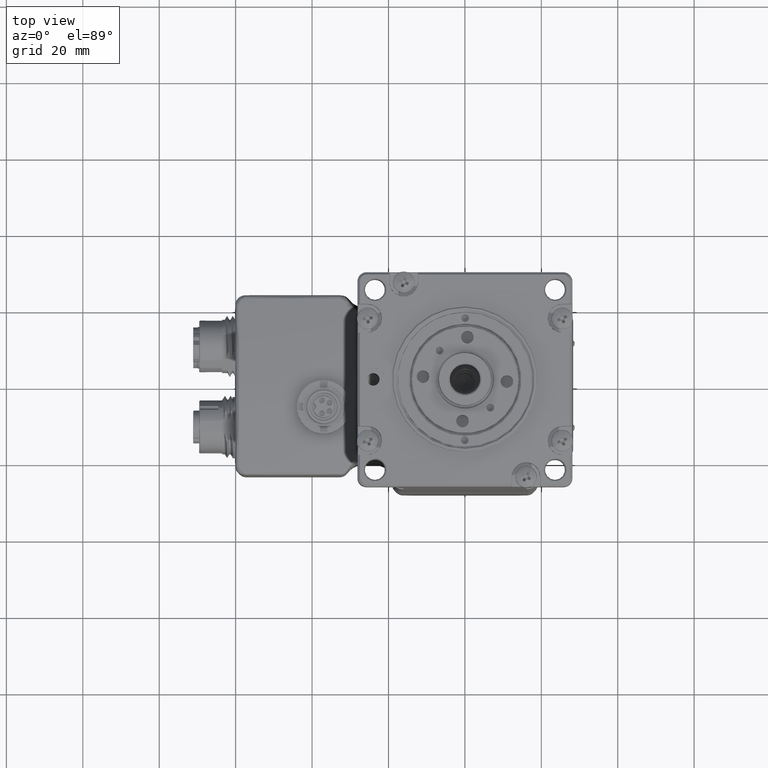
[diagram: clean part render]
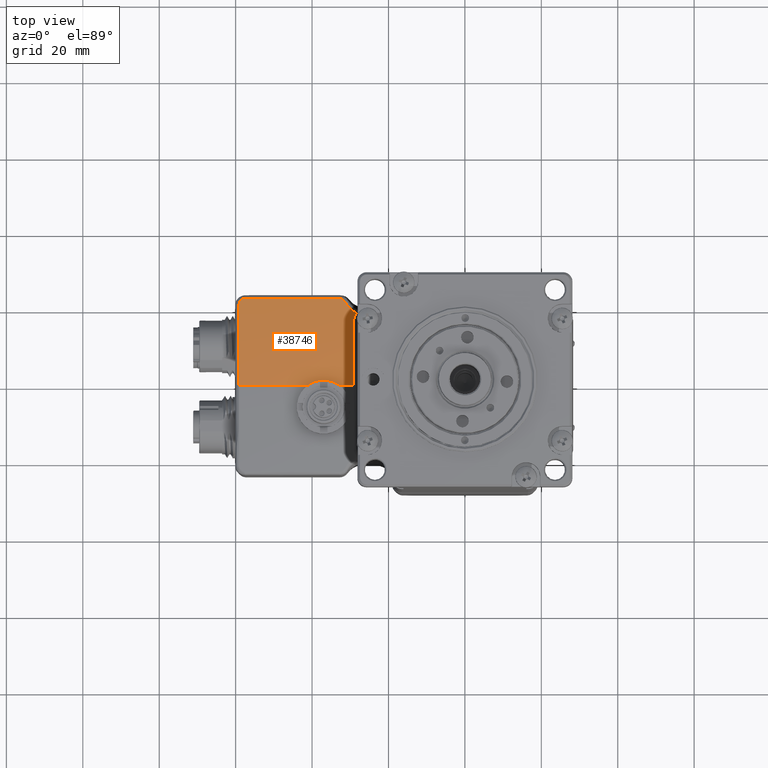
[diagram: same view with one face highlighted and labeled with its STEP entity id]
A machine part, top view. The second image highlights one B-rep face of the part: STEP entity #38746.
In plain terms, the highlighted toroidal blend (fillet) surface has major radius 200.5 mm and minor (blend) radius 400 mm.
Its self-contained STEP definition (entity closure, byte-faithful):
#1144 = CARTESIAN_POINT ( 'NONE',  ( -57.60731005357913403, 22.64756672928892556, -45.87919672931335668 ) ) ;
#1817 = CARTESIAN_POINT ( 'NONE',  ( -58.80549918260448550, 22.05673220114423216, -45.90289053374101513 ) ) ;
#2599 = CARTESIAN_POINT ( 'NONE',  ( -31.41709389123850826, 21.80595179642983794, -44.70832432824604297 ) ) ;
#2675 = CARTESIAN_POINT ( 'NONE',  ( -58.74214155870905785, 22.13454689370081141, -45.90672916452935226 ) ) ;
#3295 = AXIS2_PLACEMENT_3D ( 'NONE', #99742, #22039, #4146 ) ;
#3944 = FACE_OUTER_BOUND ( 'NONE', #35533, .T. ) ;
#4146 = DIRECTION ( 'NONE',  ( 0.0000000000000000000, 0.0000000000000000000, -1.000000000000000000 ) ) ;
#4257 = CARTESIAN_POINT ( 'NONE',  ( -32.08516530334657801, 22.48583658932004425, -44.79020920905148984 ) ) ;
#4526 = CIRCLE ( 'NONE', #3295, 199.4987562247066535 ) ;
#7296 = VERTEX_POINT ( 'NONE', #114656 ) ;
#10343 = ORIENTED_EDGE ( 'NONE', *, *, #43898, .T. ) ;
#11119 = CIRCLE ( 'NONE', #97843, 400.0000000000000568 ) ;
#11168 = CARTESIAN_POINT ( 'NONE',  ( -59.03487147467225071, 21.62365206410903795, -45.87267897063035349 ) ) ;
#13641 = CARTESIAN_POINT ( 'NONE',  ( -32.48019785733185216, 22.61870332223945113, -44.80939040744205215 ) ) ;
#13667 = CARTESIAN_POINT ( 'NONE',  ( -29.19750623441397153, 14.06280358876563064, -43.99750933611730375 ) ) ;
#14059 = CARTESIAN_POINT ( 'NONE',  ( -32.21335295235293472, 22.54268488755889521, -44.79794514531896255 ) ) ;
#17478 = TOROIDAL_SURFACE ( 'NONE', #31294, -200.5000000000000000, 400.0000000000000000 ) ;
#19479 = CARTESIAN_POINT ( 'NONE',  ( -29.09628976042439064, 17.29761763409294062, -44.25219476726910983 ) ) ;
#19764 = EDGE_CURVE ( 'NONE', #30929, #37276, #122812, .T. ) ;
#21799 = CARTESIAN_POINT ( 'NONE',  ( -58.36631100947248996, 22.45673341319814398, -45.91435395942802700 ) ) ;
#22039 = DIRECTION ( 'NONE',  ( -1.000000000000000000, -0.0000000000000000000, -0.0000000000000000000 ) ) ;
#23152 = EDGE_CURVE ( 'NONE', #33723, #118564, #83473, .T. ) ;
#23863 = CARTESIAN_POINT ( 'NONE',  ( -32.61686941492307312, 22.63793472174118548, -44.81308316740118869 ) ) ;
#27120 = ORIENTED_EDGE ( 'NONE', *, *, #19764, .T. ) ;
#27765 = CARTESIAN_POINT ( 'NONE',  ( -29.19750623441397153, 14.06280358876563064, -43.99750933611730375 ) ) ;
#28490 = CARTESIAN_POINT ( 'NONE',  ( -28.54456909735304393, 18.50372330885969063, -44.36001045726592196 ) ) ;
#28613 = CARTESIAN_POINT ( 'NONE',  ( -29.19750623441396087, 11.72173503361106306, -43.83207428468072209 ) ) ;
#29122 = B_SPLINE_CURVE_WITH_KNOTS ( 'NONE', 3,
 ( #57091, #47678, #126582, #1144 ),
 .UNSPECIFIED., .F., .F.,
 ( 4, 4 ),
 ( 0.0000000000000000000, 0.02487924307717509151 ),
 .UNSPECIFIED. ) ;
#29736 = CARTESIAN_POINT ( 'NONE',  ( -28.40897915177196609, 18.68372758310926329, -44.37677621970488673 ) ) ;
#30929 = VERTEX_POINT ( 'NONE', #70613 ) ;
#31294 = AXIS2_PLACEMENT_3D ( 'NONE', #53033, #121318, #63292 ) ;
#31840 = VERTEX_POINT ( 'NONE', #86096 ) ;
#31999 = CARTESIAN_POINT ( 'NONE',  ( -32.75686630307614422, 22.63794923789689406, -44.81469016835023922 ) ) ;
#32070 = CARTESIAN_POINT ( 'NONE',  ( -57.60731005357913403, 22.64756672928892556, -45.87919672931335668 ) ) ;
#32866 = CARTESIAN_POINT ( 'NONE',  ( -31.41709389123850826, 21.80595179642983794, -44.70832432824604297 ) ) ;
#33285 = CARTESIAN_POINT ( 'NONE',  ( -30.37977520381132379, 20.29238770428408856, -44.54043084167929578 ) ) ;
#33559 = CARTESIAN_POINT ( 'NONE',  ( -31.41709389123850826, 21.80595179642983794, -44.70832432824604297 ) ) ;
#33713 = CARTESIAN_POINT ( 'NONE',  ( -31.05906811581978388, 21.15670490720646058, -44.63498635152226512 ) ) ;
#33723 = VERTEX_POINT ( 'NONE', #121225 ) ;
#33755 = VERTEX_POINT ( 'NONE', #13667 ) ;
#34142 = CARTESIAN_POINT ( 'NONE',  ( -29.84041694188121951, 19.78505233754739834, -44.48662278827443117 ) ) ;
#34187 = B_SPLINE_CURVE_WITH_KNOTS ( 'NONE', 3,
 ( #67325, #58744, #106962, #19479, #88131, #87719, #77083, #28490, #29736, #97997 ),
 .UNSPECIFIED., .F., .F.,
 ( 4, 2, 2, 2, 4 ),
 ( 0.0000000000000000000, 0.0006649466539031178777, 0.001329893307806235755, 0.001994839961709353633, 0.002659786615612471511 ),
 .UNSPECIFIED. ) ;
#35533 = EDGE_LOOP ( 'NONE', ( #88307, #96113, #112755, #104405, #27120, #61691, #10343, #40862, #89176 ) ) ;
#37276 = VERTEX_POINT ( 'NONE', #33559 ) ;
#38746 = ADVANCED_FACE ( 'NONE', ( #3944 ), #17478, .T. ) ;
#40003 = VERTEX_POINT ( 'NONE', #68225 ) ;
#40862 = ORIENTED_EDGE ( 'NONE', *, *, #41293, .T. ) ;
#41293 = EDGE_CURVE ( 'NONE', #7296, #33723, #103458, .T. ) ;
#43566 = CARTESIAN_POINT ( 'NONE',  ( -28.60403302873692510, 18.98853523618372563, -44.40573151277627773 ) ) ;
#43898 = EDGE_CURVE ( 'NONE', #96427, #7296, #29122, .T. ) ;
#47678 = CARTESIAN_POINT ( 'NONE',  ( -41.04942728413903552, 22.63880908634466493, -44.90987909392853084 ) ) ;
#50032 = CARTESIAN_POINT ( 'NONE',  ( -58.00380793920061251, 22.60775537954132375, -45.90419105690111934 ) ) ;
#51659 = CARTESIAN_POINT ( 'NONE',  ( -31.85092269915443808, 22.34033268990963705, -44.77153600352097129 ) ) ;
#53033 = CARTESIAN_POINT ( 'NONE',  ( -28.19999999999999929, 0.0000000000000000000, -243.0000000000000568 ) ) ;
#54833 = CARTESIAN_POINT ( 'NONE',  ( -59.11055249441288595, 21.13961658818478995, -45.82609973451712193 ) ) ;
#57091 = CARTESIAN_POINT ( 'NONE',  ( -32.75686630307614422, 22.63794923789689406, -44.81469016835023922 ) ) ;
#57349 = CARTESIAN_POINT ( 'NONE',  ( -59.10070960922558214, 3.522832663657032626, -44.69535340514646293 ) ) ;
#58744 = CARTESIAN_POINT ( 'NONE',  ( -29.19750623441397863, 16.64269888938452624, -44.19651698381605343 ) ) ;
#59837 = CARTESIAN_POINT ( 'NONE',  ( -58.53426302560738748, 22.34386352492217398, -45.91432759591945967 ) ) ;
#60295 = DIRECTION ( 'NONE',  ( 0.0000000000000000000, 0.0000000000000000000, -1.000000000000000000 ) ) ;
#61691 = ORIENTED_EDGE ( 'NONE', *, *, #119626, .T. ) ;
#61969 = B_SPLINE_CURVE_WITH_KNOTS ( 'NONE', 3,
 ( #66601, #126298, #125889, #96443, #28613, #27765 ),
 .UNSPECIFIED., .F., .F.,
 ( 4, 2, 4 ),
 ( 0.01407636730809768907, 0.02111697363792940790, 0.02815757996776112326 ),
 .UNSPECIFIED. ) ;
#62635 = EDGE_CURVE ( 'NONE', #33755, #40003, #4526, .T. ) ;
#63292 = DIRECTION ( 'NONE',  ( 0.0000000000000000000, 0.0000000000000000000, 1.000000000000000000 ) ) ;
#64232 = CARTESIAN_POINT ( 'NONE',  ( -59.10152671618043030, 7.048034914923397842, -44.78922229230166607 ) ) ;
#66311 = CARTESIAN_POINT ( 'NONE',  ( -32.75686630307614422, 22.63794923789689406, -44.81469016835023922 ) ) ;
#66601 = CARTESIAN_POINT ( 'NONE',  ( -29.06440430867916547, -1.166693263862555104E-14, -43.50093399460154586 ) ) ;
#67325 = CARTESIAN_POINT ( 'NONE',  ( -29.19750623441397508, 16.41862725826358371, -44.17801325266079715 ) ) ;
#68225 = CARTESIAN_POINT ( 'NONE',  ( -29.19750623441397508, 16.41862725826358371, -44.17801325266079715 ) ) ;
#69670 = CARTESIAN_POINT ( 'NONE',  ( -59.11055249441288595, 21.13961658818478995, -45.82609973451712193 ) ) ;
#70093 = CARTESIAN_POINT ( 'NONE',  ( -59.11064498150181379, 21.23864992423294140, -45.83672461079526528 ) ) ;
#70539 = CARTESIAN_POINT ( 'NONE',  ( -28.19999999999999929, 0.0000000000000000000, -443.5000000000000568 ) ) ;
#70613 = CARTESIAN_POINT ( 'NONE',  ( -28.25880889731768164, 18.84802321018011995, -44.39234582688307285 ) ) ;
#70924 = CARTESIAN_POINT ( 'NONE',  ( -58.96001711787051391, 21.80604652381139630, -45.88695619340896314 ) ) ;
#74524 = B_SPLINE_CURVE_WITH_KNOTS ( 'NONE', 3,
 ( #2599, #88293, #91695, #82271, #51659, #4257, #14059, #13641, #23863, #31999 ),
 .UNSPECIFIED., .F., .F.,
 ( 4, 2, 2, 2, 4 ),
 ( 0.0000000000000000000, 0.0004194295940220271767, 0.0008388591880440543535, 0.001258288782066081584, 0.001677718376088108707 ),
 .UNSPECIFIED. ) ;
#77083 = CARTESIAN_POINT ( 'NONE',  ( -28.77680243980846697, 18.12733914530242529, -44.32557769485954680 ) ) ;
#79818 = CARTESIAN_POINT ( 'NONE',  ( -59.10110898178695749, 21.33614087675085358, -45.84650864690184591 ) ) ;
#81479 = CARTESIAN_POINT ( 'NONE',  ( -28.93040289698106449, 19.15897712084823112, -44.42254689831840153 ) ) ;
#82271 = CARTESIAN_POINT ( 'NONE',  ( -31.74260407706453435, 22.24995429276631498, -44.76038464299475805 ) ) ;
#82720 = CARTESIAN_POINT ( 'NONE',  ( -30.62304567699514024, 20.56709090046884825, -44.57009239989186256 ) ) ;
#83473 = B_SPLINE_CURVE_WITH_KNOTS ( 'NONE', 3,
 ( #54833, #112068, #93224, #64232, #57349, #114967 ),
 .UNSPECIFIED., .F., .F.,
 ( 4, 2, 4 ),
 ( 0.0000000000000000000, 0.01060030767033488114, 0.02120061534066976228 ),
 .UNSPECIFIED. ) ;
#86096 = CARTESIAN_POINT ( 'NONE',  ( -29.06440430867916547, -1.166693263862555104E-14, -43.50093399460154586 ) ) ;
#87719 = CARTESIAN_POINT ( 'NONE',  ( -28.87513590980617195, 17.92927245723699414, -44.30774871851630081 ) ) ;
#88131 = CARTESIAN_POINT ( 'NONE',  ( -29.03559591196815148, 17.51302618558253954, -44.27093181623075679 ) ) ;
#88293 = CARTESIAN_POINT ( 'NONE',  ( -31.47884557060060828, 21.93077668462844088, -44.72255086808299751 ) ) ;
#88307 = ORIENTED_EDGE ( 'NONE', *, *, #108392, .F. ) ;
#89176 = ORIENTED_EDGE ( 'NONE', *, *, #23152, .T. ) ;
#90066 = CARTESIAN_POINT ( 'NONE',  ( -59.06344915717315303, 21.52814567060744722, -45.86444859596051060 ) ) ;
#90499 = CARTESIAN_POINT ( 'NONE',  ( -58.91412981706990593, 21.89265533140348197, -45.89300057826308432 ) ) ;
#91695 = CARTESIAN_POINT ( 'NONE',  ( -31.55781629042720482, 22.04630382260267751, -44.73602952195533078 ) ) ;
#92171 = CARTESIAN_POINT ( 'NONE',  ( -28.25880889731768164, 18.84802321018011995, -44.39234582688307285 ) ) ;
#93224 = CARTESIAN_POINT ( 'NONE',  ( -59.10480881084636451, 14.10321822625832056, -45.16626788492003186 ) ) ;
#96113 = ORIENTED_EDGE ( 'NONE', *, *, #97162, .T. ) ;
#96205 = EDGE_CURVE ( 'NONE', #40003, #30929, #34187, .T. ) ;
#96427 = VERTEX_POINT ( 'NONE', #66311 ) ;
#96443 = CARTESIAN_POINT ( 'NONE',  ( -29.15852523331268031, 9.379566908527722902, -43.70796354507552195 ) ) ;
#97162 = EDGE_CURVE ( 'NONE', #31840, #33755, #61969, .T. ) ;
#97683 = CARTESIAN_POINT ( 'NONE',  ( -59.10070960922557504, 1.888939871706605509E-11, -44.69535340514611477 ) ) ;
#97843 = AXIS2_PLACEMENT_3D ( 'NONE', #70539, #99962, #60295 ) ;
#97997 = CARTESIAN_POINT ( 'NONE',  ( -28.25880889731768164, 18.84802321018011995, -44.39234582688307285 ) ) ;
#99742 = CARTESIAN_POINT ( 'NONE',  ( -29.19750623441397508, 0.0000000000000000000, -243.0000000000000568 ) ) ;
#99962 = DIRECTION ( 'NONE',  ( 0.0000000000000000000, -1.000000000000000000, 0.0000000000000000000 ) ) ;
#103458 = B_SPLINE_CURVE_WITH_KNOTS ( 'NONE', 3,
 ( #32070, #118750, #50032, #21799, #59837, #2675, #1817, #90499, #70924, #11168, #90066, #79818, #70093, #69670 ),
 .UNSPECIFIED., .F., .F.,
 ( 4, 2, 2, 2, 2, 2, 4 ),
 ( 0.0000000000000000000, 0.0005938572280961718769, 0.001187714456192343754, 0.001484643070240422320, 0.001781571684288500886, 0.002078500298336579451, 0.002375428912384658017 ),
 .UNSPECIFIED. ) ;
#104405 = ORIENTED_EDGE ( 'NONE', *, *, #96205, .T. ) ;
#106962 = CARTESIAN_POINT ( 'NONE',  ( -29.17692324739816812, 16.86325292329719971, -44.21505834532747059 ) ) ;
#108392 = EDGE_CURVE ( 'NONE', #31840, #118564, #11119, .T. ) ;
#110549 = CARTESIAN_POINT ( 'NONE',  ( -31.25267447849113722, 21.47359427958384259, -44.67044488351560005 ) ) ;
#112068 = CARTESIAN_POINT ( 'NONE',  ( -59.10727141218243474, 17.62629896917198735, -45.44917044467297984 ) ) ;
#112755 = ORIENTED_EDGE ( 'NONE', *, *, #62635, .T. ) ;
#114656 = CARTESIAN_POINT ( 'NONE',  ( -57.60731005357913403, 22.64756672928892556, -45.87919672931335668 ) ) ;
#114967 = CARTESIAN_POINT ( 'NONE',  ( -59.10070960922557504, 1.888939871706605509E-11, -44.69535340514611477 ) ) ;
#118564 = VERTEX_POINT ( 'NONE', #97683 ) ;
#118750 = CARTESIAN_POINT ( 'NONE',  ( -57.80600698860465059, 22.64770009798369799, -45.89395590370902767 ) ) ;
#119626 = EDGE_CURVE ( 'NONE', #37276, #96427, #74524, .T. ) ;
#121225 = CARTESIAN_POINT ( 'NONE',  ( -59.11055249441288595, 21.13961658818478995, -45.82609973451712193 ) ) ;
#121228 = CARTESIAN_POINT ( 'NONE',  ( -29.54760066037627197, 19.55625642222342009, -44.46288897240214055 ) ) ;
#121318 = DIRECTION ( 'NONE',  ( -1.000000000000000000, 0.0000000000000000000, 0.0000000000000000000 ) ) ;
#122812 = B_SPLINE_CURVE_WITH_KNOTS ( 'NONE', 3,
 ( #92171, #43566, #81479, #121228, #34142, #33285, #82720, #33713, #110549, #32866 ),
 .UNSPECIFIED., .F., .F.,
 ( 4, 2, 2, 2, 4 ),
 ( 8.308568511054532204E-15, 0.001102545612780271101, 0.002205091225552233310, 0.003307636838324195735, 0.004410182451096158161 ),
 .UNSPECIFIED. ) ;
#125889 = CARTESIAN_POINT ( 'NONE',  ( -29.09154778410356457, 4.692182510306202481, -43.54239223694501248 ) ) ;
#126298 = CARTESIAN_POINT ( 'NONE',  ( -29.06440430867915481, 2.346883420505744944, -43.50093399460156718 ) ) ;
#126582 = CARTESIAN_POINT ( 'NONE',  ( -49.33698880968753286, 22.64201555181620762, -45.26487867991291836 ) ) ;